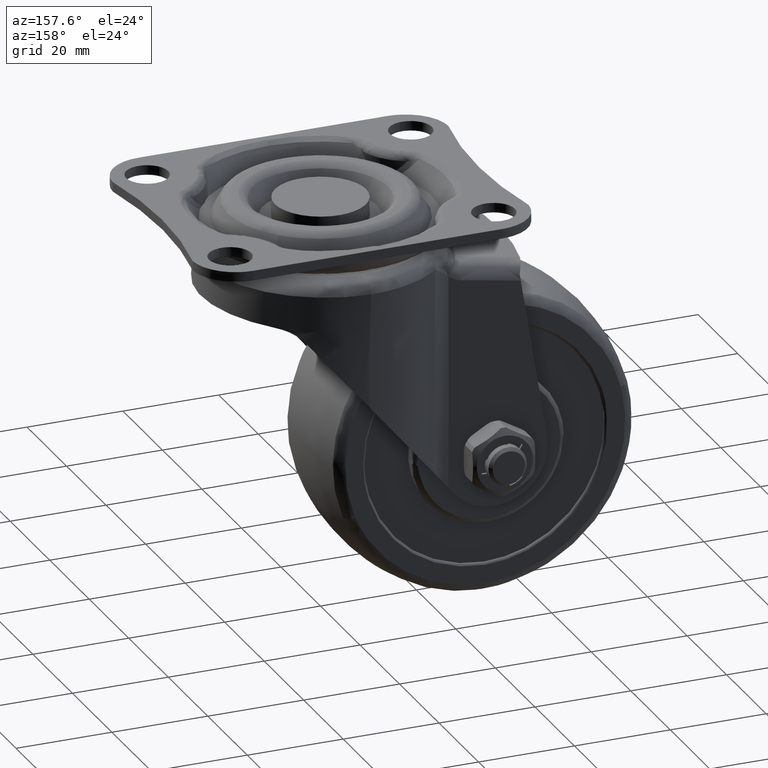
[diagram: clean part render]
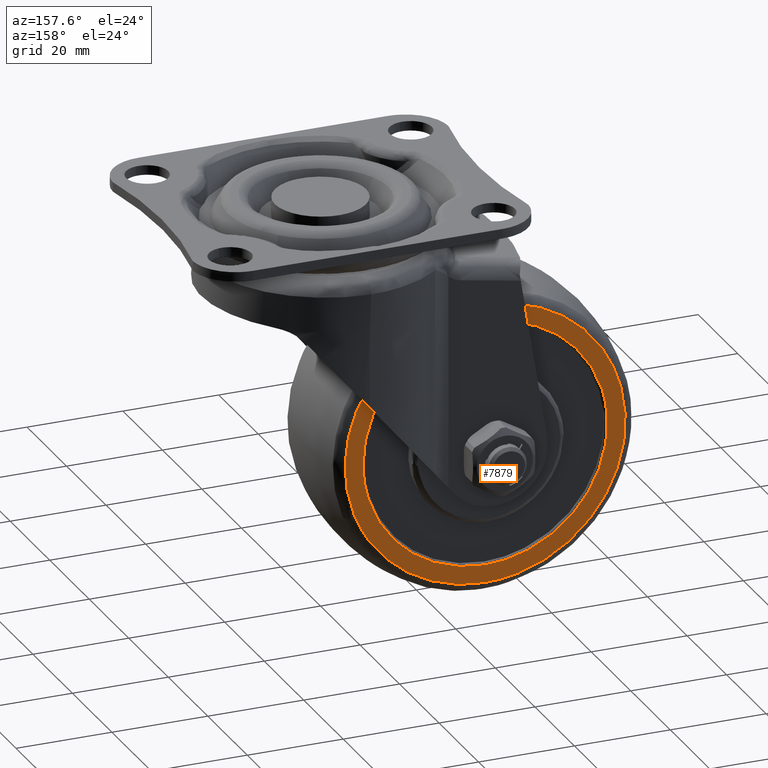
[diagram: same view with one face highlighted and labeled with its STEP entity id]
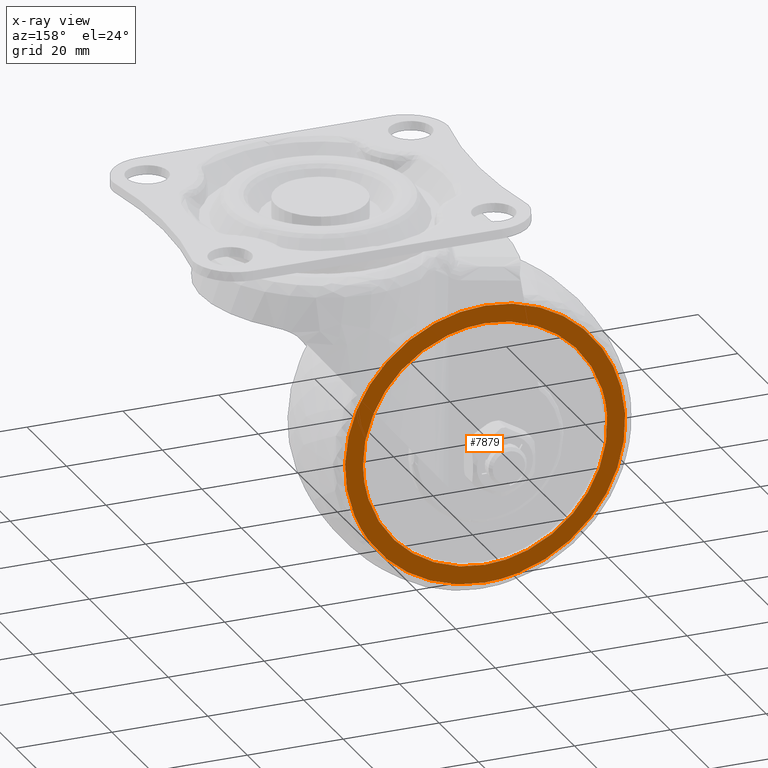
[diagram: x-ray of the same camera — body ghosted, the highlighted face saturated]
A machine part, auxiliary view. The second image highlights one B-rep face of the part: STEP entity #7879.
The next image is the same camera in x-ray: the body ghosted, the highlighted face saturated — about 0% of this face is hidden behind the body in this view.
In plain terms, the highlighted face is a freeform B-spline surface patch.
Its self-contained STEP definition (entity closure, byte-faithful):
#6733=CARTESIAN_POINT('',(-3.502013380989321,13.0,-52.820428017104653));
#6734=VERTEX_POINT('',#6733);
#6748=CARTESIAN_POINT('',(-29.0,13.0,-77.999994000000001));
#6749=VERTEX_POINT('',#6748);
#6750=CARTESIAN_POINT('',(-29.0,13.0,-77.999994000000001));
#6751=CARTESIAN_POINT('',(-3.818445787723029,13.0,-77.999993999999987));
#6752=CARTESIAN_POINT('',(-3.502013380989320,13.000000000000005,-52.820428017104646));
#6760=(BOUNDED_CURVE()B_SPLINE_CURVE(2,(#6750,#6751,#6752),.UNSPECIFIED.,.F.,.U.)B_SPLINE_CURVE_WITH_KNOTS((3,3),(0.0,0.247784295919217),.UNSPECIFIED.)CURVE()GEOMETRIC_REPRESENTATION_ITEM()RATIONAL_B_SPLINE_CURVE((1.0,0.709702639987182,0.994854295638233))REPRESENTATION_ITEM(''));
#6761=EDGE_CURVE('',#6749,#6734,#6760,.T.);
#6763=CARTESIAN_POINT('',(-54.437924673639010,13.0,-50.721796085297498));
#6764=VERTEX_POINT('',#6763);
#6765=CARTESIAN_POINT('',(-54.437924673639017,13.000000000000002,-50.721796085297491));
#6766=CARTESIAN_POINT('',(-54.500000000000000,13.000000000000005,-51.609811545016804));
#6767=CARTESIAN_POINT('',(-54.500000000000000,13.0,-52.499994000000001));
#6768=CARTESIAN_POINT('',(-54.499999999999993,13.000000000000002,-77.999993999999987));
#6769=CARTESIAN_POINT('',(-29.0,13.0,-77.999994000000001));
#6777=(BOUNDED_CURVE()B_SPLINE_CURVE(2,(#6765,#6766,#6767,#6768,#6769),.UNSPECIFIED.,.F.,.U.)B_SPLINE_CURVE_WITH_KNOTS((3,2,3),(0.737833686532736,0.750000000000000,1.0),.UNSPECIFIED.)CURVE()GEOMETRIC_REPRESENTATION_ITEM()RATIONAL_B_SPLINE_CURVE((0.972879876381993,0.985746277149918,1.0,0.707106781186548,1.0))REPRESENTATION_ITEM(''));
#6778=EDGE_CURVE('',#6764,#6749,#6777,.T.);
#6835=CARTESIAN_POINT('',(-29.0,13.0,-26.999994000000001));
#6836=VERTEX_POINT('',#6835);
#6837=CARTESIAN_POINT('',(-29.0,13.0,-26.999994000000001));
#6838=CARTESIAN_POINT('',(-52.779689604966308,13.0,-26.999994000000012));
#6839=CARTESIAN_POINT('',(-54.437924673639017,13.000000000000002,-50.721796085297491));
#6847=(BOUNDED_CURVE()B_SPLINE_CURVE(2,(#6837,#6838,#6839),.UNSPECIFIED.,.F.,.U.)B_SPLINE_CURVE_WITH_KNOTS((3,3),(0.500000000000000,0.737833686532736),.UNSPECIFIED.)CURVE()GEOMETRIC_REPRESENTATION_ITEM()RATIONAL_B_SPLINE_CURVE((1.0,0.721360504036630,0.972879876381993))REPRESENTATION_ITEM(''));
#6848=EDGE_CURVE('',#6836,#6764,#6847,.T.);
#6850=CARTESIAN_POINT('',(-3.502013380989321,13.000000000000002,-52.820428017104646));
#6851=CARTESIAN_POINT('',(-3.500000000000003,13.0,-52.660217333975218));
#6852=CARTESIAN_POINT('',(-3.500000000000003,13.0,-52.499994000000001));
#6853=CARTESIAN_POINT('',(-3.500000000000006,13.000000000000002,-26.999994000000004));
#6854=CARTESIAN_POINT('',(-29.0,13.0,-26.999994000000001));
#6862=(BOUNDED_CURVE()B_SPLINE_CURVE(2,(#6850,#6851,#6852,#6853,#6854),.UNSPECIFIED.,.F.,.U.)B_SPLINE_CURVE_WITH_KNOTS((3,2,3),(0.247784295919218,0.250000000000000,0.500000000000000),.UNSPECIFIED.)CURVE()GEOMETRIC_REPRESENTATION_ITEM()RATIONAL_B_SPLINE_CURVE((0.994854295638234,0.997404141199366,1.0,0.707106781186548,1.0))REPRESENTATION_ITEM(''));
#6863=EDGE_CURVE('',#6734,#6836,#6862,.T.);
#7467=CARTESIAN_POINT('',(-1.723929599489993,13.0,-62.986905445075116));
#7468=VERTEX_POINT('',#7467);
#7482=CARTESIAN_POINT('',(-29.0,13.0,-23.277411500000099));
#7483=VERTEX_POINT('',#7482);
#7484=CARTESIAN_POINT('',(-1.723929599489993,12.999999999999996,-62.986905445075116));
#7485=CARTESIAN_POINT('',(0.222582499999898,13.000000000000004,-57.924099162276676));
#7486=CARTESIAN_POINT('',(0.222582499999898,13.0,-52.499994000000001));
#7487=CARTESIAN_POINT('',(0.222582499999898,13.0,-23.277411500000110));
#7488=CARTESIAN_POINT('',(-29.0,13.0,-23.277411500000099));
#7496=(BOUNDED_CURVE()B_SPLINE_CURVE(2,(#7484,#7485,#7486,#7487,#7488),.UNSPECIFIED.,.F.,.U.)B_SPLINE_CURVE_WITH_KNOTS((3,2,3),(0.189060941089798,0.250000000000000,0.500000000000000),.UNSPECIFIED.)CURVE()GEOMETRIC_REPRESENTATION_ITEM()RATIONAL_B_SPLINE_CURVE((0.892016635831706,0.928605451537314,1.0,0.707106781186547,1.0))REPRESENTATION_ITEM(''));
#7497=EDGE_CURVE('',#7468,#7483,#7496,.T.);
#7499=CARTESIAN_POINT('',(-57.304501339229077,13.0,-45.232633253929578));
#7500=VERTEX_POINT('',#7499);
#7501=CARTESIAN_POINT('',(-29.0,13.0,-23.277411500000099));
#7502=CARTESIAN_POINT('',(-51.667358504917402,13.000000000000002,-23.277411500000099));
#7503=CARTESIAN_POINT('',(-57.304501339229084,13.000000000000002,-45.232633253929592));
#7511=(BOUNDED_CURVE()B_SPLINE_CURVE(2,(#7501,#7502,#7503),.UNSPECIFIED.,.F.,.U.)B_SPLINE_CURVE_WITH_KNOTS((3,3),(0.500000000000000,0.707556761754815),.UNSPECIFIED.)CURVE()GEOMETRIC_REPRESENTATION_ITEM()RATIONAL_B_SPLINE_CURVE((1.0,0.756832127852542,0.917433344550965))REPRESENTATION_ITEM(''));
#7512=EDGE_CURVE('',#7483,#7500,#7511,.T.);
#7614=CARTESIAN_POINT('',(-29.0,13.0,-81.722576499999889));
#7615=VERTEX_POINT('',#7614);
#7616=CARTESIAN_POINT('',(-57.304501339229077,13.000000000000002,-45.232633253929578));
#7617=CARTESIAN_POINT('',(-58.222582499999895,13.000000000000002,-48.808323316001363));
#7618=CARTESIAN_POINT('',(-58.222582499999902,13.0,-52.499994000000001));
#7619=CARTESIAN_POINT('',(-58.222582499999888,13.0,-81.722576499999874));
#7620=CARTESIAN_POINT('',(-29.0,13.0,-81.722576499999889));
#7628=(BOUNDED_CURVE()B_SPLINE_CURVE(2,(#7616,#7617,#7618,#7619,#7620),.UNSPECIFIED.,.F.,.U.)B_SPLINE_CURVE_WITH_KNOTS((3,2,3),(0.707556761754816,0.750000000000000,1.0),.UNSPECIFIED.)CURVE()GEOMETRIC_REPRESENTATION_ITEM()RATIONAL_B_SPLINE_CURVE((0.917433344550967,0.950274653334007,1.0,0.707106781186547,1.0))REPRESENTATION_ITEM(''));
#7629=EDGE_CURVE('',#7500,#7615,#7628,.T.);
#7631=CARTESIAN_POINT('',(-29.0,13.0,-81.722576499999889));
#7632=CARTESIAN_POINT('',(-8.927288456691178,12.999999999999996,-81.722576499999889));
#7633=CARTESIAN_POINT('',(-1.723929599489993,12.999999999999996,-62.986905445075116));
#7641=(BOUNDED_CURVE()B_SPLINE_CURVE(2,(#7631,#7632,#7633),.UNSPECIFIED.,.F.,.U.)B_SPLINE_CURVE_WITH_KNOTS((3,3),(0.0,0.189060941089798),.UNSPECIFIED.)CURVE()GEOMETRIC_REPRESENTATION_ITEM()RATIONAL_B_SPLINE_CURVE((1.0,0.778501329649234,0.892016635831706))REPRESENTATION_ITEM(''));
#7642=EDGE_CURVE('',#7615,#7468,#7641,.T.);
#7862=CARTESIAN_POINT('',(-61.140535533509457,13.0,-20.358076170169578));
#7863=CARTESIAN_POINT('',(-61.140535533509457,13.0,-84.641913919992376));
#7864=CARTESIAN_POINT('',(3.135411471648056,13.0,-20.358076170169578));
#7865=CARTESIAN_POINT('',(3.135411471648056,13.0,-84.641913919992376));
#7866=B_SPLINE_SURFACE_WITH_KNOTS('',1,1,((#7862,#7864),(#7863,#7865)),.UNSPECIFIED.,.F.,.F.,.U.,(2,2),(2,2),(0.0,64.283837749822794),(0.0,64.275947005157519),.UNSPECIFIED.);
#7867=ORIENTED_EDGE('',*,*,#7629,.F.);
#7868=ORIENTED_EDGE('',*,*,#7512,.F.);
#7869=ORIENTED_EDGE('',*,*,#7497,.F.);
#7870=ORIENTED_EDGE('',*,*,#7642,.F.);
#7871=EDGE_LOOP('',(#7867,#7868,#7869,#7870));
#7872=FACE_OUTER_BOUND('',#7871,.T.);
#7873=ORIENTED_EDGE('',*,*,#6761,.T.);
#7874=ORIENTED_EDGE('',*,*,#6863,.T.);
#7875=ORIENTED_EDGE('',*,*,#6848,.T.);
#7876=ORIENTED_EDGE('',*,*,#6778,.T.);
#7877=EDGE_LOOP('',(#7873,#7874,#7875,#7876));
#7878=FACE_BOUND('',#7877,.T.);
#7879=ADVANCED_FACE('',(#7872,#7878),#7866,.F.);